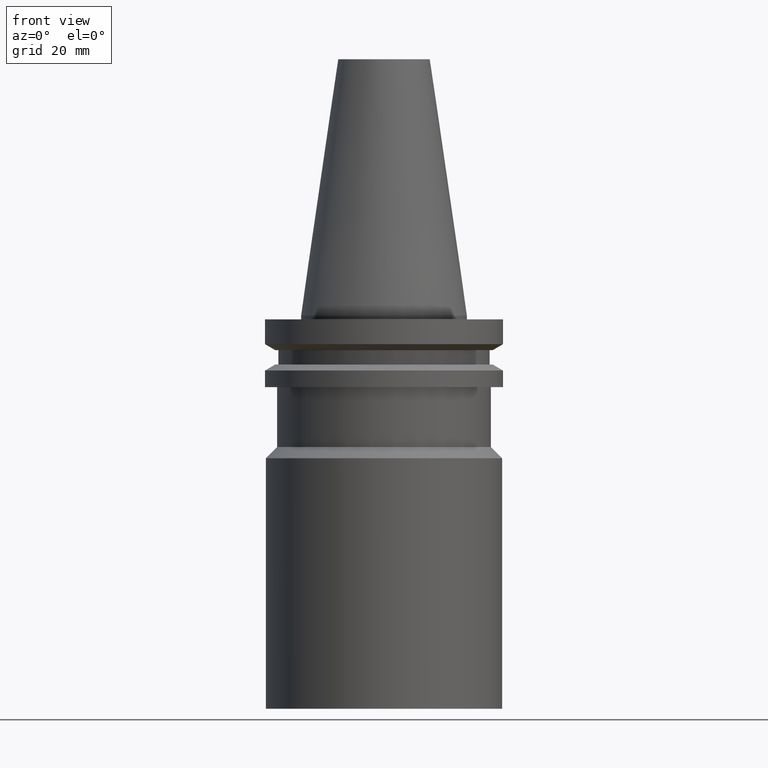
[diagram: clean part render]
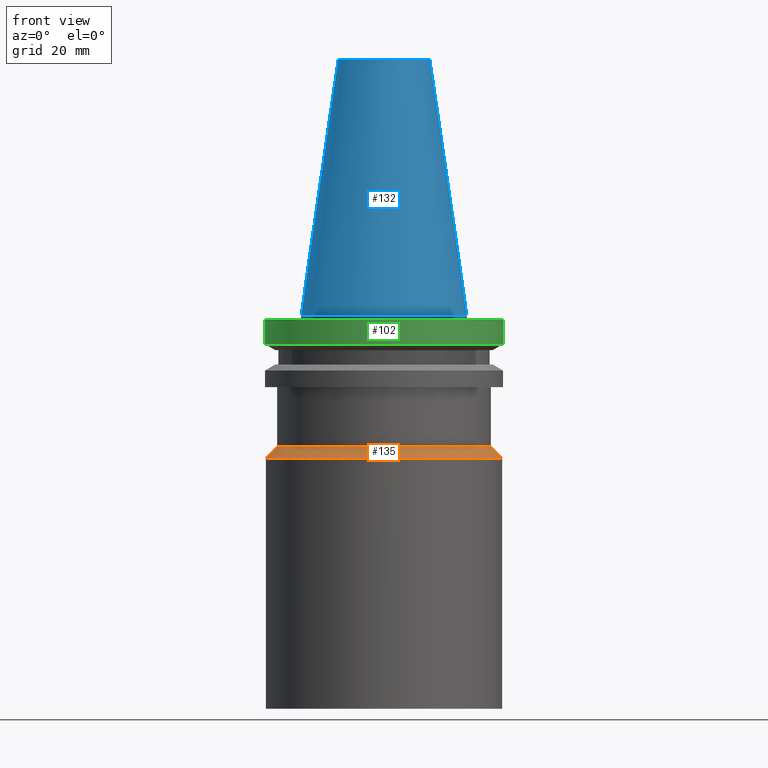
[diagram: same view with three faces highlighted in distinct colors, each labeled with its STEP entity id]
A machine part, front view with three faces highlighted in distinct colors.
Their STEP definitions:

[orange] entity #135 — the highlighted conical surface has half-angle 45 deg.
#58=EDGE_CURVE('Unnamed[1]',#156,#156,#157,.T.);
#124=EDGE_CURVE('Unnamed[1]',#258,#258,#259,.T.);
#135=ADVANCED_FACE('Unnamed[1]',(#275,#276),#277,.T.);
#156=VERTEX_POINT('',#290);
#157=CIRCLE('',#291,31.5000000000001);
#258=VERTEX_POINT('',#417);
#259=CIRCLE('',#418,28.5000000000003);
#275=FACE_BOUND('',#438,.T.);
#276=FACE_BOUND('',#439,.T.);
#277=CONICAL_SURFACE('',#440,30.0000000000002,0.785398163397459);
#290=CARTESIAN_POINT('',(2.32682891837998E-015,31.5000000000001,-38.0000000000001));
#291=AXIS2_PLACEMENT_3D('',#445,#446,#447);
#417=CARTESIAN_POINT('',(2.14313189850789E-015,28.5000000000003,-35.0000000000003));
#418=AXIS2_PLACEMENT_3D('',#558,#559,#560);
#438=EDGE_LOOP('',(#577));
#439=EDGE_LOOP('',(#578));
#440=AXIS2_PLACEMENT_3D('',#579,#580,#581);
#445=CARTESIAN_POINT('',(2.32682891837998E-015,-2.16104217373504E-014,-38.0000000000001));
#446=DIRECTION('',(6.12323399573677E-017,-1.22421842920772E-016,-1.0));
#447=DIRECTION('',(2.6690231731616E-033,1.0,-1.22421842920772E-016));
#558=CARTESIAN_POINT('',(2.14313189850789E-015,-2.12431562085881E-014,-35.0000000000003));
#559=DIRECTION('',(6.12323399573677E-017,-1.22421842920777E-016,-1.0));
#560=DIRECTION('',(2.66902317316308E-033,1.0,-1.22421842920777E-016));
#577=ORIENTED_EDGE('',*,*,#58,.F.);
#578=ORIENTED_EDGE('',*,*,#124,.T.);
#579=CARTESIAN_POINT('',(2.23498040844393E-015,-2.14267889729693E-014,-36.5000000000002));
#580=DIRECTION('',(6.12323399573677E-017,-1.22421842920775E-016,-1.0));
#581=DIRECTION('',(2.66902317316529E-033,1.0,-1.22421842920775E-016));

[blue] entity #132 — the highlighted conical surface has half-angle 8.297 deg.
#63=EDGE_CURVE('Unnamed[1]',#164,#164,#165,.T.);
#107=EDGE_CURVE('Unnamed[1]',#232,#232,#233,.T.);
#132=ADVANCED_FACE('Unnamed[1]',(#270,#271),#272,.T.);
#164=VERTEX_POINT('',#300);
#165=CIRCLE('',#301,12.2718750014768);
#232=VERTEX_POINT('',#384);
#233=CIRCLE('',#385,22.225);
#270=FACE_BOUND('',#432,.T.);
#271=FACE_BOUND('',#433,.T.);
#272=CONICAL_SURFACE('',#434,17.2484375007384,0.144812498217751);
#300=CARTESIAN_POINT('',(-4.17910720209034E-015,12.2718750014768,68.25));
#301=AXIS2_PLACEMENT_3D('',#454,#455,#456);
#384=CARTESIAN_POINT('',(-2.7394427528964E-031,22.225,2.72177751110499E-015));
#385=AXIS2_PLACEMENT_3D('',#529,#530,#531);
#432=EDGE_LOOP('',(#571));
#433=EDGE_LOOP('',(#572));
#434=AXIS2_PLACEMENT_3D('',#573,#574,#575);
#454=CARTESIAN_POINT('',(-4.17910720209034E-015,-8.60310092701621E-015,68.25));
#455=DIRECTION('',(6.12323399573677E-017,-1.22421842920813E-016,-1.0));
#456=DIRECTION('',(2.66902317316486E-033,1.0,-1.22421842920813E-016));
#529=CARTESIAN_POINT('',(2.09028316133936E-046,-1.69583917063603E-014,-2.07680401218812E-030));
#530=DIRECTION('',(6.12323399573676E-017,-1.22421842920814E-016,-1.0));
#531=DIRECTION('',(2.6690231731699E-033,1.0,-1.22421842920814E-016));
#571=ORIENTED_EDGE('',*,*,#107,.F.);
#572=ORIENTED_EDGE('',*,*,#63,.T.);
#573=CARTESIAN_POINT('',(-2.08955360104517E-015,-1.27807463166883E-014,34.125));
#574=DIRECTION('',(6.12323399573676E-017,-1.22421842920813E-016,-1.0));
#575=DIRECTION('',(2.66902317316811E-033,1.0,-1.22421842920813E-016));

[green] entity #102 — the highlighted cylindrical surface (bore or boss wall) has radius 31.75 mm, axis along (0, -0, -1).
#83=EDGE_CURVE('Unnamed[1]',#195,#195,#196,.T.);
#102=ADVANCED_FACE('Unnamed[1]',(#223,#224),#225,.T.);
#129=EDGE_CURVE('Unnamed[1]',#266,#266,#267,.T.);
#195=VERTEX_POINT('',#339);
#196=CIRCLE('',#340,31.75);
#223=FACE_BOUND('',#373,.T.);
#224=FACE_BOUND('',#374,.T.);
#225=CYLINDRICAL_SURFACE('',#375,31.75);
#266=VERTEX_POINT('',#427);
#267=CIRCLE('',#428,31.75);
#339=CARTESIAN_POINT('',(6.12323399573673E-017,31.75,-0.999999999999996));
#340=AXIS2_PLACEMENT_3D('',#489,#490,#491);
#373=EDGE_LOOP('',(#518));
#374=EDGE_LOOP('',(#519));
#375=AXIS2_PLACEMENT_3D('',#520,#521,#522);
#427=CARTESIAN_POINT('',(4.64988177975518E-016,31.75,-7.59383323092439));
#428=AXIS2_PLACEMENT_3D('',#567,#568,#569);
#489=CARTESIAN_POINT('',(6.12323399573668E-017,-1.70808135492811E-014,-0.999999999999986));
#490=DIRECTION('',(6.12323399573677E-017,-1.22421842920806E-016,-1.0));
#491=DIRECTION('',(2.66902317316385E-033,1.0,-1.22421842920806E-016));
#518=ORIENTED_EDGE('',*,*,#129,.F.);
#519=ORIENTED_EDGE('',*,*,#83,.T.);
#520=CARTESIAN_POINT('',(2.63110258966442E-016,-1.74844281573022E-014,-4.29691661546218));
#521=DIRECTION('',(6.12323399573677E-017,-1.22421842920806E-016,-1.0));
#522=DIRECTION('',(2.66902317316385E-033,1.0,-1.22421842920806E-016));
#567=CARTESIAN_POINT('',(4.64988177975517E-016,-1.78880427653232E-014,-7.59383323092437));
#568=DIRECTION('',(6.12323399573677E-017,-1.22421842920806E-016,-1.0));
#569=DIRECTION('',(2.66902317316385E-033,1.0,-1.22421842920806E-016));